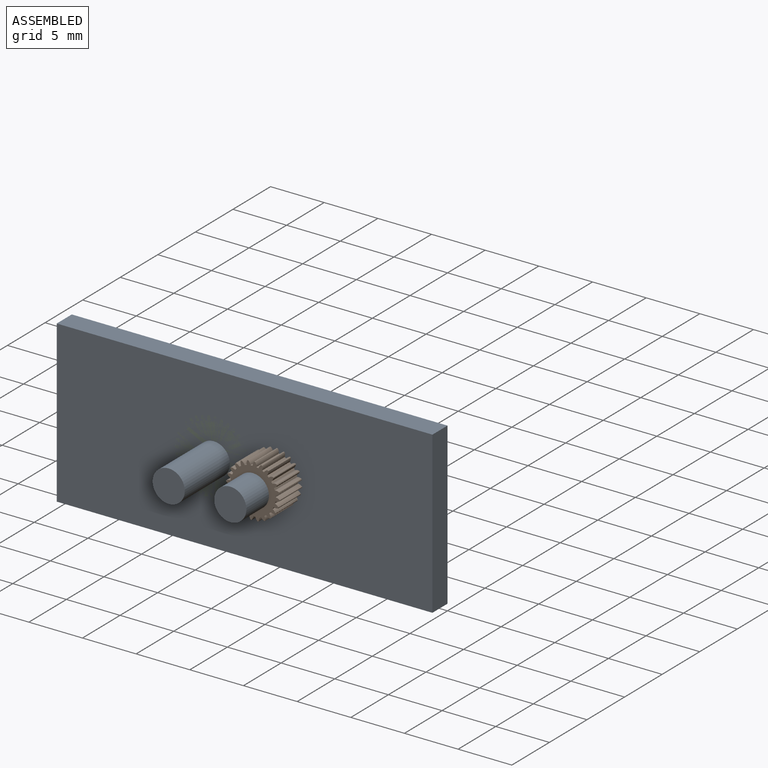
[diagram: assembled view]
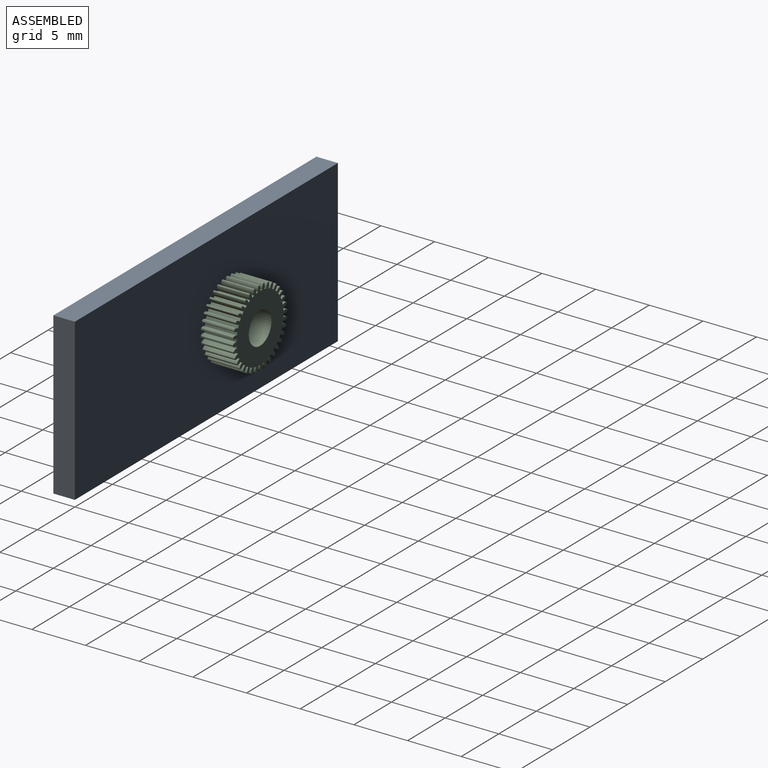
[diagram: assembled view, second angle]
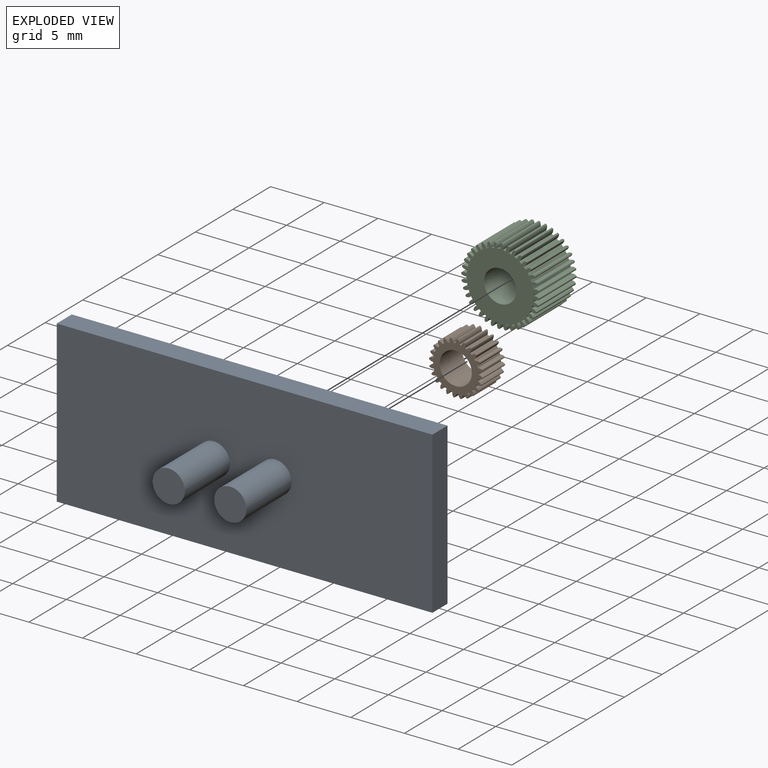
[diagram: exploded view]
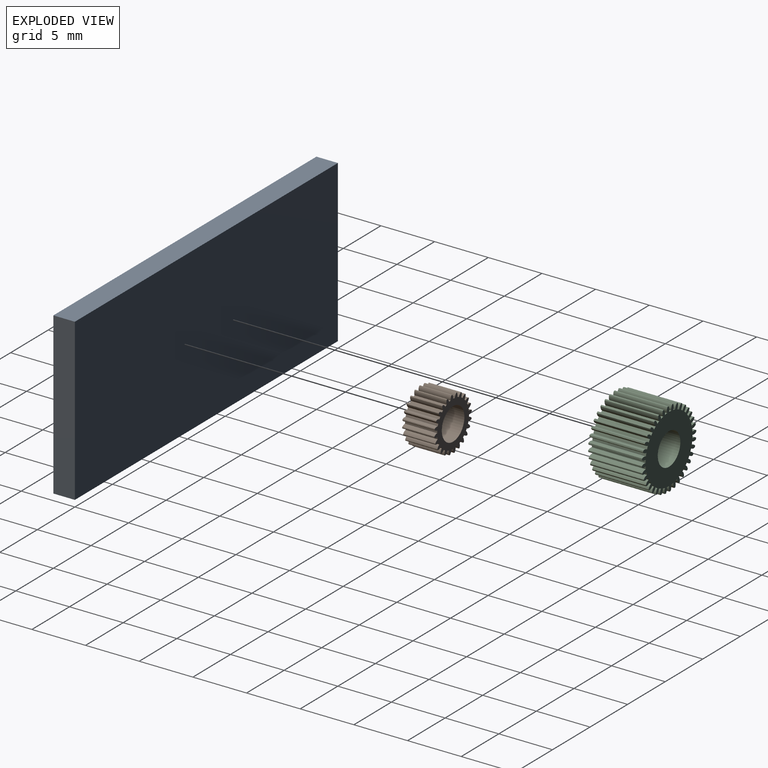
[diagram: exploded view, second angle]
ASSEMBLY  parts=3 mates=2
PART A: 10 faces, bbox 35x8x15 mm
  f0: plane 35x2mm, normal (0,0,1), area 70mm2, adj f1,f3,f4,f5
  f1: plane 15x2mm, normal (-1,0,0), area 30mm2, adj f0,f2,f4,f5
  f2: plane 35x2mm, normal (0,0,-1), area 70mm2, adj f1,f3,f4,f5
  f3: plane 15x2mm, normal (1,0,0), area 30mm2, adj f0,f2,f4,f5
  f4: plane 35x15mm, normal (0,-1,0), area 510.9mm2, adj f0,f1,f2,f3,f6,f8
  f5: plane 35x15mm, normal (0,1,0), area 525mm2, adj f0,f1,f2,f3
  f6: cylinder r=1.5mm len=6mm, axis (0,1,0), area 56.5mm2, adj f4,f7
  f7: plane 3x3mm, normal (0,-1,0), area 7.1mm2, adj f6
  f8: cylinder r=1.5mm len=6mm, axis (0,1,0), area 56.5mm2, adj f4,f9
  f9: plane 3x3mm, normal (0,-1,0), area 7.1mm2, adj f8
PART B: 99 faces, bbox 5x3x5 mm
  f0: cylinder r=2.12mm len=3mm, axis (0,1,0), area 0.6mm2, adj f1,f96,f97,f98
  f1: cylinder r=0.57mm len=3mm, axis (0,1,0), area 1.3mm2, adj f0,f2,f97,f98
  f2: cylinder r=2.5mm len=3mm, axis (0,1,0), area 0.3mm2, adj f1,f3,f97,f98
  f3: cylinder r=0.57mm len=3mm, axis (0,1,0), area 1.3mm2, adj f2,f4,f97,f98
  f4: cylinder r=2.12mm len=3mm, axis (0,1,0), area 0.6mm2, adj f3,f5,f97,f98
  f5: cylinder r=0.57mm len=3mm, axis (0,1,0), area 1.3mm2, adj f4,f6,f97,f98
  f6: cylinder r=2.5mm len=3mm, axis (0,1,0), area 0.3mm2, adj f5,f7,f97,f98
  f7: cylinder r=0.57mm len=3mm, axis (0,1,0), area 1.3mm2, adj f6,f8,f97,f98
  f8: cylinder r=2.12mm len=3mm, axis (0,1,0), area 0.6mm2, adj f7,f9,f97,f98
  f9: cylinder r=0.57mm len=3mm, axis (0,1,0), area 1.3mm2, adj f8,f10,f97,f98
  f10: cylinder r=2.5mm len=3mm, axis (0,1,0), area 0.3mm2, adj f9,f11,f97,f98
  f11: cylinder r=0.57mm len=3mm, axis (0,1,0), area 1.3mm2, adj f10,f12,f97,f98
  f12: cylinder r=2.12mm len=3mm, axis (0,1,0), area 0.6mm2, adj f11,f13,f97,f98
  f13: cylinder r=0.57mm len=3mm, axis (0,1,0), area 1.3mm2, adj f12,f14,f97,f98
  f14: cylinder r=2.5mm len=3mm, axis (0,1,0), area 0.3mm2, adj f13,f15,f97,f98
  f15: cylinder r=0.57mm len=3mm, axis (0,1,0), area 1.3mm2, adj f14,f16,f97,f98
  f16: cylinder r=2.12mm len=3mm, axis (0,1,0), area 0.6mm2, adj f15,f17,f97,f98
  f17: cylinder r=0.57mm len=3mm, axis (0,1,0), area 1.3mm2, adj f16,f18,f97,f98
  f18: cylinder r=2.5mm len=3mm, axis (0,1,0), area 0.3mm2, adj f17,f19,f97,f98
  f19: cylinder r=0.57mm len=3mm, axis (0,1,0), area 1.3mm2, adj f18,f20,f97,f98
  f20: cylinder r=2.12mm len=3mm, axis (0,1,0), area 0.6mm2, adj f19,f21,f97,f98
  f21: cylinder r=0.57mm len=3mm, axis (0,1,0), area 1.3mm2, adj f20,f22,f97,f98
  f22: cylinder r=2.5mm len=3mm, axis (0,1,0), area 0.3mm2, adj f21,f23,f97,f98
  f23: cylinder r=0.57mm len=3mm, axis (0,1,0), area 1.3mm2, adj f22,f24,f97,f98
  f24: cylinder r=2.12mm len=3mm, axis (0,1,0), area 0.6mm2, adj f23,f25,f97,f98
  f25: cylinder r=0.57mm len=3mm, axis (0,1,0), area 1.3mm2, adj f24,f26,f97,f98
  f26: cylinder r=2.5mm len=3mm, axis (0,1,0), area 0.3mm2, adj f25,f27,f97,f98
  f27: cylinder r=0.57mm len=3mm, axis (0,1,0), area 1.3mm2, adj f26,f28,f97,f98
  f28: cylinder r=2.12mm len=3mm, axis (0,1,0), area 0.6mm2, adj f27,f29,f97,f98
  f29: cylinder r=0.57mm len=3mm, axis (0,1,0), area 1.3mm2, adj f28,f30,f97,f98
  f30: cylinder r=2.5mm len=3mm, axis (0,1,0), area 0.3mm2, adj f29,f31,f97,f98
  f31: cylinder r=0.57mm len=3mm, axis (0,1,0), area 1.3mm2, adj f30,f32,f97,f98
  f32: cylinder r=2.12mm len=3mm, axis (0,1,0), area 0.6mm2, adj f31,f33,f97,f98
  f33: cylinder r=0.57mm len=3mm, axis (0,1,0), area 1.3mm2, adj f32,f34,f97,f98
  f34: cylinder r=2.5mm len=3mm, axis (0,1,0), area 0.3mm2, adj f33,f35,f97,f98
  f35: cylinder r=0.57mm len=3mm, axis (0,1,0), area 1.3mm2, adj f34,f36,f97,f98
  f36: cylinder r=2.12mm len=3mm, axis (0,1,0), area 0.6mm2, adj f35,f37,f97,f98
  f37: cylinder r=0.57mm len=3mm, axis (0,1,0), area 1.3mm2, adj f36,f38,f97,f98
  f38: cylinder r=2.5mm len=3mm, axis (0,1,0), area 0.3mm2, adj f37,f39,f97,f98
  f39: cylinder r=0.57mm len=3mm, axis (0,1,0), area 1.3mm2, adj f38,f40,f97,f98
  f40: cylinder r=2.12mm len=3mm, axis (0,1,0), area 0.6mm2, adj f39,f41,f97,f98
  f41: cylinder r=0.57mm len=3mm, axis (0,1,0), area 1.3mm2, adj f40,f42,f97,f98
  f42: cylinder r=2.5mm len=3mm, axis (0,1,0), area 0.3mm2, adj f41,f43,f97,f98
  f43: cylinder r=0.57mm len=3mm, axis (0,1,0), area 1.3mm2, adj f42,f44,f97,f98
  f44: cylinder r=2.12mm len=3mm, axis (0,1,0), area 0.6mm2, adj f43,f45,f97,f98
  f45: cylinder r=0.57mm len=3mm, axis (0,1,0), area 1.3mm2, adj f44,f46,f97,f98
  f46: cylinder r=2.5mm len=3mm, axis (0,1,0), area 0.3mm2, adj f45,f47,f97,f98
  f47: cylinder r=0.57mm len=3mm, axis (0,1,0), area 1.3mm2, adj f46,f48,f97,f98
  f48: cylinder r=2.12mm len=3mm, axis (0,1,0), area 0.6mm2, adj f47,f49,f97,f98
  f49: cylinder r=0.57mm len=3mm, axis (0,1,0), area 1.3mm2, adj f48,f50,f97,f98
  f50: cylinder r=2.5mm len=3mm, axis (0,1,0), area 0.3mm2, adj f49,f51,f97,f98
  f51: cylinder r=0.57mm len=3mm, axis (0,1,0), area 1.3mm2, adj f50,f52,f97,f98
  f52: cylinder r=2.12mm len=3mm, axis (0,1,0), area 0.6mm2, adj f51,f53,f97,f98
  f53: cylinder r=0.57mm len=3mm, axis (0,1,0), area 1.3mm2, adj f52,f54,f97,f98
  f54: cylinder r=2.5mm len=3mm, axis (0,1,0), area 0.3mm2, adj f53,f55,f97,f98
  f55: cylinder r=0.57mm len=3mm, axis (0,1,0), area 1.3mm2, adj f54,f56,f97,f98
  f56: cylinder r=2.12mm len=3mm, axis (0,1,0), area 0.6mm2, adj f55,f57,f97,f98
  f57: cylinder r=0.57mm len=3mm, axis (0,1,0), area 1.3mm2, adj f56,f58,f97,f98
  f58: cylinder r=2.5mm len=3mm, axis (0,1,0), area 0.3mm2, adj f57,f59,f97,f98
  f59: cylinder r=0.57mm len=3mm, axis (0,1,0), area 1.3mm2, adj f58,f60,f97,f98
  f60: cylinder r=2.12mm len=3mm, axis (0,1,0), area 0.6mm2, adj f59,f61,f97,f98
  f61: cylinder r=0.57mm len=3mm, axis (0,1,0), area 1.3mm2, adj f60,f62,f97,f98
  f62: cylinder r=2.5mm len=3mm, axis (0,1,0), area 0.3mm2, adj f61,f63,f97,f98
  f63: cylinder r=0.57mm len=3mm, axis (0,1,0), area 1.3mm2, adj f62,f64,f97,f98
  f64: cylinder r=2.12mm len=3mm, axis (0,1,0), area 0.6mm2, adj f63,f65,f97,f98
  f65: cylinder r=0.57mm len=3mm, axis (0,1,0), area 1.3mm2, adj f64,f66,f97,f98
  f66: cylinder r=2.5mm len=3mm, axis (0,1,0), area 0.3mm2, adj f65,f67,f97,f98
  f67: cylinder r=0.57mm len=3mm, axis (0,1,0), area 1.3mm2, adj f66,f68,f97,f98
  f68: cylinder r=2.12mm len=3mm, axis (0,1,0), area 0.6mm2, adj f67,f69,f97,f98
  f69: cylinder r=0.57mm len=3mm, axis (0,1,0), area 1.3mm2, adj f68,f70,f97,f98
  f70: cylinder r=2.5mm len=3mm, axis (0,1,0), area 0.3mm2, adj f69,f71,f97,f98
  f71: cylinder r=0.57mm len=3mm, axis (0,1,0), area 1.3mm2, adj f70,f72,f97,f98
  f72: cylinder r=2.12mm len=3mm, axis (0,1,0), area 0.6mm2, adj f71,f73,f97,f98
  f73: cylinder r=0.57mm len=3mm, axis (0,1,0), area 1.3mm2, adj f72,f74,f97,f98
  f74: cylinder r=2.5mm len=3mm, axis (0,1,0), area 0.3mm2, adj f73,f75,f97,f98
  f75: cylinder r=0.57mm len=3mm, axis (0,1,0), area 1.3mm2, adj f74,f76,f97,f98
  f76: cylinder r=2.12mm len=3mm, axis (0,1,0), area 0.6mm2, adj f75,f77,f97,f98
  f77: cylinder r=0.57mm len=3mm, axis (0,1,0), area 1.3mm2, adj f76,f78,f97,f98
  f78: cylinder r=2.5mm len=3mm, axis (0,1,0), area 0.3mm2, adj f77,f79,f97,f98
  f79: cylinder r=0.57mm len=3mm, axis (0,1,0), area 1.3mm2, adj f78,f80,f97,f98
  f80: cylinder r=2.12mm len=3mm, axis (0,1,0), area 0.6mm2, adj f79,f81,f97,f98
  f81: cylinder r=0.57mm len=3mm, axis (0,1,0), area 1.3mm2, adj f80,f82,f97,f98
  f82: cylinder r=2.5mm len=3mm, axis (0,1,0), area 0.3mm2, adj f81,f83,f97,f98
  f83: cylinder r=0.57mm len=3mm, axis (0,1,0), area 1.3mm2, adj f82,f84,f97,f98
  f84: cylinder r=2.12mm len=3mm, axis (0,1,0), area 0.6mm2, adj f83,f85,f97,f98
  f85: cylinder r=0.57mm len=3mm, axis (0,1,0), area 1.3mm2, adj f84,f86,f97,f98
  f86: cylinder r=2.5mm len=3mm, axis (0,1,0), area 0.3mm2, adj f85,f87,f97,f98
  f87: cylinder r=0.57mm len=3mm, axis (0,1,0), area 1.3mm2, adj f86,f88,f97,f98
  f88: cylinder r=2.12mm len=3mm, axis (0,1,0), area 0.6mm2, adj f87,f89,f97,f98
  f89: cylinder r=0.57mm len=3mm, axis (0,1,0), area 1.3mm2, adj f88,f90,f97,f98
  f90: cylinder r=2.5mm len=3mm, axis (0,1,0), area 0.3mm2, adj f89,f91,f97,f98
  f91: cylinder r=0.57mm len=3mm, axis (0,1,0), area 1.3mm2, adj f90,f92,f97,f98
  f92: cylinder r=2.12mm len=3mm, axis (0,1,0), area 0.6mm2, adj f91,f93,f97,f98
  f93: cylinder r=0.57mm len=3mm, axis (0,1,0), area 1.3mm2, adj f92,f94,f97,f98
  f94: cylinder r=2.5mm len=3mm, axis (0,1,0), area 0.3mm2, adj f93,f96,f97,f98
  f95: cylinder r=1.5mm len=3mm, axis (0,1,0), area 28.3mm2, adj f97,f98
  f96: cylinder r=0.57mm len=3mm, axis (0,1,0), area 1.3mm2, adj f0,f94,f97,f98
  f97: plane 4.99x4.99mm, normal (0,-1,0), area 9.5mm2, adj f0,f1,f2,f3,f4,f5,f6,f7
  f98: plane 4.99x4.99mm, normal (0,1,0), area 9.5mm2, adj f0,f1,f2,f3,f4,f5,f6,f7
PART C: 147 faces, bbox 7.2x5x7.2 mm
  f0: cylinder r=0.57mm len=5mm, axis (0,1,0), area 2.6mm2, adj f1,f143,f145,f146
  f1: cylinder r=3.12mm len=5mm, axis (0,1,0), area 1.4mm2, adj f0,f2,f145,f146
  f2: cylinder r=0.57mm len=5mm, axis (0,1,0), area 2.6mm2, adj f1,f3,f145,f146
  f3: cylinder r=3.62mm len=5mm, axis (0,1,0), area 0.7mm2, adj f2,f4,f145,f146
  f4: cylinder r=0.57mm len=5mm, axis (0,1,0), area 2.6mm2, adj f3,f5,f145,f146
  f5: cylinder r=3.12mm len=5mm, axis (0,1,0), area 1.4mm2, adj f4,f6,f145,f146
  f6: cylinder r=0.57mm len=5mm, axis (0,1,0), area 2.6mm2, adj f5,f7,f145,f146
  f7: cylinder r=3.62mm len=5mm, axis (0,1,0), area 0.7mm2, adj f6,f8,f145,f146
  f8: cylinder r=0.57mm len=5mm, axis (0,1,0), area 2.6mm2, adj f7,f9,f145,f146
  f9: cylinder r=3.12mm len=5mm, axis (0,1,0), area 1.4mm2, adj f8,f10,f145,f146
  f10: cylinder r=0.57mm len=5mm, axis (0,1,0), area 2.6mm2, adj f9,f11,f145,f146
  f11: cylinder r=3.62mm len=5mm, axis (0,1,0), area 0.7mm2, adj f10,f12,f145,f146
  f12: cylinder r=0.57mm len=5mm, axis (0,1,0), area 2.6mm2, adj f11,f13,f145,f146
  f13: cylinder r=3.12mm len=5mm, axis (0,1,0), area 1.4mm2, adj f12,f14,f145,f146
  f14: cylinder r=0.57mm len=5mm, axis (0,1,0), area 2.6mm2, adj f13,f15,f145,f146
  f15: cylinder r=3.62mm len=5mm, axis (0,1,0), area 0.7mm2, adj f14,f16,f145,f146
  f16: cylinder r=0.57mm len=5mm, axis (0,1,0), area 2.6mm2, adj f15,f17,f145,f146
  f17: cylinder r=3.12mm len=5mm, axis (0,1,0), area 1.4mm2, adj f16,f18,f145,f146
  f18: cylinder r=0.57mm len=5mm, axis (0,1,0), area 2.6mm2, adj f17,f19,f145,f146
  f19: cylinder r=3.62mm len=5mm, axis (0,1,0), area 0.7mm2, adj f18,f20,f145,f146
  f20: cylinder r=0.57mm len=5mm, axis (0,1,0), area 2.6mm2, adj f19,f21,f145,f146
  f21: cylinder r=3.12mm len=5mm, axis (0,1,0), area 1.4mm2, adj f20,f22,f145,f146
  f22: cylinder r=0.57mm len=5mm, axis (0,1,0), area 2.6mm2, adj f21,f23,f145,f146
  f23: cylinder r=3.62mm len=5mm, axis (0,1,0), area 0.7mm2, adj f22,f24,f145,f146
  f24: cylinder r=0.57mm len=5mm, axis (0,1,0), area 2.6mm2, adj f23,f25,f145,f146
  f25: cylinder r=3.12mm len=5mm, axis (0,1,0), area 1.4mm2, adj f24,f26,f145,f146
  f26: cylinder r=0.57mm len=5mm, axis (0,1,0), area 2.6mm2, adj f25,f27,f145,f146
  f27: cylinder r=3.62mm len=5mm, axis (0,1,0), area 0.7mm2, adj f26,f28,f145,f146
  f28: cylinder r=0.57mm len=5mm, axis (0,1,0), area 2.6mm2, adj f27,f29,f145,f146
  f29: cylinder r=3.12mm len=5mm, axis (0,1,0), area 1.4mm2, adj f28,f30,f145,f146
  f30: cylinder r=0.57mm len=5mm, axis (0,1,0), area 2.6mm2, adj f29,f31,f145,f146
  f31: cylinder r=3.62mm len=5mm, axis (0,1,0), area 0.7mm2, adj f30,f32,f145,f146
  f32: cylinder r=0.57mm len=5mm, axis (0,1,0), area 2.6mm2, adj f31,f33,f145,f146
  f33: cylinder r=3.12mm len=5mm, axis (0,1,0), area 1.4mm2, adj f32,f34,f145,f146
  f34: cylinder r=0.57mm len=5mm, axis (0,1,0), area 2.6mm2, adj f33,f35,f145,f146
  f35: cylinder r=3.62mm len=5mm, axis (0,1,0), area 0.7mm2, adj f34,f36,f145,f146
  f36: cylinder r=0.57mm len=5mm, axis (0,1,0), area 2.6mm2, adj f35,f37,f145,f146
  f37: cylinder r=3.12mm len=5mm, axis (0,1,0), area 1.4mm2, adj f36,f38,f145,f146
  f38: cylinder r=0.57mm len=5mm, axis (0,1,0), area 2.6mm2, adj f37,f39,f145,f146
  f39: cylinder r=3.62mm len=5mm, axis (0,1,0), area 0.7mm2, adj f38,f40,f145,f146
  f40: cylinder r=0.57mm len=5mm, axis (0,1,0), area 2.6mm2, adj f39,f41,f145,f146
  f41: cylinder r=3.12mm len=5mm, axis (0,1,0), area 1.4mm2, adj f40,f42,f145,f146
  f42: cylinder r=0.57mm len=5mm, axis (0,1,0), area 2.6mm2, adj f41,f43,f145,f146
  f43: cylinder r=3.62mm len=5mm, axis (0,1,0), area 0.7mm2, adj f42,f44,f145,f146
  f44: cylinder r=0.57mm len=5mm, axis (0,1,0), area 2.6mm2, adj f43,f45,f145,f146
  f45: cylinder r=3.12mm len=5mm, axis (0,1,0), area 1.4mm2, adj f44,f46,f145,f146
  f46: cylinder r=0.57mm len=5mm, axis (0,1,0), area 2.6mm2, adj f45,f47,f145,f146
  f47: cylinder r=3.62mm len=5mm, axis (0,1,0), area 0.7mm2, adj f46,f48,f145,f146
  f48: cylinder r=0.57mm len=5mm, axis (0,1,0), area 2.6mm2, adj f47,f49,f145,f146
  f49: cylinder r=3.12mm len=5mm, axis (0,1,0), area 1.4mm2, adj f48,f50,f145,f146
  f50: cylinder r=0.57mm len=5mm, axis (0,1,0), area 2.6mm2, adj f49,f51,f145,f146
  f51: cylinder r=3.62mm len=5mm, axis (0,1,0), area 0.7mm2, adj f50,f52,f145,f146
  f52: cylinder r=0.57mm len=5mm, axis (0,1,0), area 2.6mm2, adj f51,f53,f145,f146
  f53: cylinder r=3.12mm len=5mm, axis (0,1,0), area 1.4mm2, adj f52,f54,f145,f146
  f54: cylinder r=0.57mm len=5mm, axis (0,1,0), area 2.6mm2, adj f53,f55,f145,f146
  f55: cylinder r=3.62mm len=5mm, axis (0,1,0), area 0.7mm2, adj f54,f56,f145,f146
  f56: cylinder r=0.57mm len=5mm, axis (0,1,0), area 2.6mm2, adj f55,f57,f145,f146
  f57: cylinder r=3.12mm len=5mm, axis (0,1,0), area 1.4mm2, adj f56,f58,f145,f146
  f58: cylinder r=0.57mm len=5mm, axis (0,1,0), area 2.6mm2, adj f57,f59,f145,f146
  f59: cylinder r=3.62mm len=5mm, axis (0,1,0), area 0.7mm2, adj f58,f60,f145,f146
  f60: cylinder r=0.57mm len=5mm, axis (0,1,0), area 2.6mm2, adj f59,f61,f145,f146
  f61: cylinder r=3.12mm len=5mm, axis (0,1,0), area 1.4mm2, adj f60,f62,f145,f146
  f62: cylinder r=0.57mm len=5mm, axis (0,1,0), area 2.6mm2, adj f61,f63,f145,f146
  f63: cylinder r=3.62mm len=5mm, axis (0,1,0), area 0.7mm2, adj f62,f64,f145,f146
  f64: cylinder r=0.57mm len=5mm, axis (0,1,0), area 2.6mm2, adj f63,f65,f145,f146
  f65: cylinder r=3.12mm len=5mm, axis (0,1,0), area 1.4mm2, adj f64,f66,f145,f146
  f66: cylinder r=0.57mm len=5mm, axis (0,1,0), area 2.6mm2, adj f65,f67,f145,f146
  f67: cylinder r=3.62mm len=5mm, axis (0,1,0), area 0.7mm2, adj f66,f68,f145,f146
  f68: cylinder r=0.57mm len=5mm, axis (0,1,0), area 2.6mm2, adj f67,f69,f145,f146
  f69: cylinder r=3.12mm len=5mm, axis (0,1,0), area 1.4mm2, adj f68,f70,f145,f146
  f70: cylinder r=0.57mm len=5mm, axis (0,1,0), area 2.6mm2, adj f69,f71,f145,f146
  f71: cylinder r=3.62mm len=5mm, axis (0,1,0), area 0.7mm2, adj f70,f72,f145,f146
  f72: cylinder r=0.57mm len=5mm, axis (0,1,0), area 2.6mm2, adj f71,f73,f145,f146
  f73: cylinder r=3.12mm len=5mm, axis (0,1,0), area 1.4mm2, adj f72,f74,f145,f146
  f74: cylinder r=0.57mm len=5mm, axis (0,1,0), area 2.6mm2, adj f73,f75,f145,f146
  f75: cylinder r=3.62mm len=5mm, axis (0,1,0), area 0.7mm2, adj f74,f76,f145,f146
  f76: cylinder r=0.57mm len=5mm, axis (0,1,0), area 2.6mm2, adj f75,f77,f145,f146
  f77: cylinder r=3.12mm len=5mm, axis (0,1,0), area 1.4mm2, adj f76,f78,f145,f146
  f78: cylinder r=0.57mm len=5mm, axis (0,1,0), area 2.6mm2, adj f77,f79,f145,f146
  f79: cylinder r=3.62mm len=5mm, axis (0,1,0), area 0.7mm2, adj f78,f80,f145,f146
  f80: cylinder r=0.57mm len=5mm, axis (0,1,0), area 2.6mm2, adj f79,f81,f145,f146
  f81: cylinder r=3.12mm len=5mm, axis (0,1,0), area 1.4mm2, adj f80,f82,f145,f146
  f82: cylinder r=0.57mm len=5mm, axis (0,1,0), area 2.6mm2, adj f81,f83,f145,f146
  f83: cylinder r=3.62mm len=5mm, axis (0,1,0), area 0.7mm2, adj f82,f84,f145,f146
  f84: cylinder r=0.57mm len=5mm, axis (0,1,0), area 2.6mm2, adj f83,f85,f145,f146
  f85: cylinder r=3.12mm len=5mm, axis (0,1,0), area 1.4mm2, adj f84,f86,f145,f146
  f86: cylinder r=0.57mm len=5mm, axis (0,1,0), area 2.6mm2, adj f85,f87,f145,f146
  f87: cylinder r=3.62mm len=5mm, axis (0,1,0), area 0.7mm2, adj f86,f88,f145,f146
  f88: cylinder r=0.57mm len=5mm, axis (0,1,0), area 2.6mm2, adj f87,f89,f145,f146
  f89: cylinder r=3.12mm len=5mm, axis (0,1,0), area 1.4mm2, adj f88,f90,f145,f146
  f90: cylinder r=0.57mm len=5mm, axis (0,1,0), area 2.6mm2, adj f89,f91,f145,f146
  f91: cylinder r=3.62mm len=5mm, axis (0,1,0), area 0.7mm2, adj f90,f92,f145,f146
  f92: cylinder r=0.57mm len=5mm, axis (0,1,0), area 2.6mm2, adj f91,f93,f145,f146
  f93: cylinder r=3.12mm len=5mm, axis (0,1,0), area 1.4mm2, adj f92,f94,f145,f146
  f94: cylinder r=0.57mm len=5mm, axis (0,1,0), area 2.6mm2, adj f93,f95,f145,f146
  f95: cylinder r=3.62mm len=5mm, axis (0,1,0), area 0.7mm2, adj f94,f96,f145,f146
  f96: cylinder r=0.57mm len=5mm, axis (0,1,0), area 2.6mm2, adj f95,f97,f145,f146
  f97: cylinder r=3.12mm len=5mm, axis (0,1,0), area 1.4mm2, adj f96,f98,f145,f146
  f98: cylinder r=0.57mm len=5mm, axis (0,1,0), area 2.6mm2, adj f97,f99,f145,f146
  f99: cylinder r=3.62mm len=5mm, axis (0,1,0), area 0.7mm2, adj f98,f100,f145,f146
  f100: cylinder r=0.57mm len=5mm, axis (0,1,0), area 2.6mm2, adj f99,f101,f145,f146
  f101: cylinder r=3.12mm len=5mm, axis (0,1,0), area 1.4mm2, adj f100,f102,f145,f146
  f102: cylinder r=0.57mm len=5mm, axis (0,1,0), area 2.6mm2, adj f101,f103,f145,f146
  f103: cylinder r=3.62mm len=5mm, axis (0,1,0), area 0.7mm2, adj f102,f104,f145,f146
  f104: cylinder r=0.57mm len=5mm, axis (0,1,0), area 2.6mm2, adj f103,f105,f145,f146
  f105: cylinder r=3.12mm len=5mm, axis (0,1,0), area 1.4mm2, adj f104,f106,f145,f146
  f106: cylinder r=0.57mm len=5mm, axis (0,1,0), area 2.6mm2, adj f105,f107,f145,f146
  f107: cylinder r=3.62mm len=5mm, axis (0,1,0), area 0.7mm2, adj f106,f108,f145,f146
  f108: cylinder r=0.57mm len=5mm, axis (0,1,0), area 2.6mm2, adj f107,f109,f145,f146
  f109: cylinder r=3.12mm len=5mm, axis (0,1,0), area 1.4mm2, adj f108,f110,f145,f146
  f110: cylinder r=0.57mm len=5mm, axis (0,1,0), area 2.6mm2, adj f109,f111,f145,f146
  f111: cylinder r=3.62mm len=5mm, axis (0,1,0), area 0.7mm2, adj f110,f112,f145,f146
  f112: cylinder r=0.57mm len=5mm, axis (0,1,0), area 2.6mm2, adj f111,f113,f145,f146
  f113: cylinder r=3.12mm len=5mm, axis (0,1,0), area 1.4mm2, adj f112,f114,f145,f146
  f114: cylinder r=0.57mm len=5mm, axis (0,1,0), area 2.6mm2, adj f113,f115,f145,f146
  f115: cylinder r=3.62mm len=5mm, axis (0,1,0), area 0.7mm2, adj f114,f116,f145,f146
  f116: cylinder r=0.57mm len=5mm, axis (0,1,0), area 2.6mm2, adj f115,f117,f145,f146
  f117: cylinder r=3.12mm len=5mm, axis (0,1,0), area 1.4mm2, adj f116,f118,f145,f146
  f118: cylinder r=0.57mm len=5mm, axis (0,1,0), area 2.6mm2, adj f117,f119,f145,f146
  f119: cylinder r=3.62mm len=5mm, axis (0,1,0), area 0.7mm2, adj f118,f120,f145,f146
  f120: cylinder r=0.57mm len=5mm, axis (0,1,0), area 2.6mm2, adj f119,f121,f145,f146
  f121: cylinder r=3.12mm len=5mm, axis (0,1,0), area 1.4mm2, adj f120,f122,f145,f146
  f122: cylinder r=0.57mm len=5mm, axis (0,1,0), area 2.6mm2, adj f121,f123,f145,f146
  f123: cylinder r=3.62mm len=5mm, axis (0,1,0), area 0.7mm2, adj f122,f124,f145,f146
  f124: cylinder r=0.57mm len=5mm, axis (0,1,0), area 2.6mm2, adj f123,f125,f145,f146
  f125: cylinder r=3.12mm len=5mm, axis (0,1,0), area 1.4mm2, adj f124,f126,f145,f146
  f126: cylinder r=0.57mm len=5mm, axis (0,1,0), area 2.6mm2, adj f125,f127,f145,f146
  f127: cylinder r=3.62mm len=5mm, axis (0,1,0), area 0.7mm2, adj f126,f128,f145,f146
  f128: cylinder r=0.57mm len=5mm, axis (0,1,0), area 2.6mm2, adj f127,f129,f145,f146
  f129: cylinder r=3.12mm len=5mm, axis (0,1,0), area 1.4mm2, adj f128,f130,f145,f146
  f130: cylinder r=0.57mm len=5mm, axis (0,1,0), area 2.6mm2, adj f129,f131,f145,f146
  f131: cylinder r=3.62mm len=5mm, axis (0,1,0), area 0.7mm2, adj f130,f132,f145,f146
  f132: cylinder r=0.57mm len=5mm, axis (0,1,0), area 2.6mm2, adj f131,f133,f145,f146
  f133: cylinder r=3.12mm len=5mm, axis (0,1,0), area 1.4mm2, adj f132,f134,f145,f146
  f134: cylinder r=0.57mm len=5mm, axis (0,1,0), area 2.6mm2, adj f133,f135,f145,f146
  f135: cylinder r=3.62mm len=5mm, axis (0,1,0), area 0.7mm2, adj f134,f136,f145,f146
  f136: cylinder r=0.57mm len=5mm, axis (0,1,0), area 2.6mm2, adj f135,f137,f145,f146
  f137: cylinder r=3.12mm len=5mm, axis (0,1,0), area 1.4mm2, adj f136,f138,f145,f146
  f138: cylinder r=0.57mm len=5mm, axis (0,1,0), area 2.6mm2, adj f137,f139,f145,f146
  f139: cylinder r=3.62mm len=5mm, axis (0,1,0), area 0.7mm2, adj f138,f140,f145,f146
  f140: cylinder r=0.57mm len=5mm, axis (0,1,0), area 2.6mm2, adj f139,f141,f145,f146
  f141: cylinder r=3.12mm len=5mm, axis (0,1,0), area 1.4mm2, adj f140,f142,f145,f146
  f142: cylinder r=0.57mm len=5mm, axis (0,1,0), area 2.6mm2, adj f141,f143,f145,f146
  f143: cylinder r=3.62mm len=5mm, axis (0,1,0), area 0.7mm2, adj f0,f142,f145,f146
  f144: cylinder r=1.5mm len=5mm, axis (0,1,0), area 47.1mm2, adj f145,f146
  f145: plane 7.25x7.25mm, normal (0,-1,0), area 28.6mm2, adj f0,f1,f2,f3,f4,f5,f6,f7
  f146: plane 7.25x7.25mm, normal (0,1,0), area 28.6mm2, adj f0,f1,f2,f3,f4,f5,f6,f7
PLACE A t=(-17.5,0,7.5)mm
PLACE B rot(axis=(0,1,0),157.8deg) t=(-14.63,-2,7.5)mm
PLACE C rot(axis=(0,-1,0),135.2deg) t=(-20.37,3,7.5)mm
MATE revolute C.f144 <-> A.f6  axis (0,1,0) through (-20.37,-2,7.5)mm
MATE revolute B.f95 <-> A.f8  axis (0,1,0) through (-14.63,-2,7.5)mm
